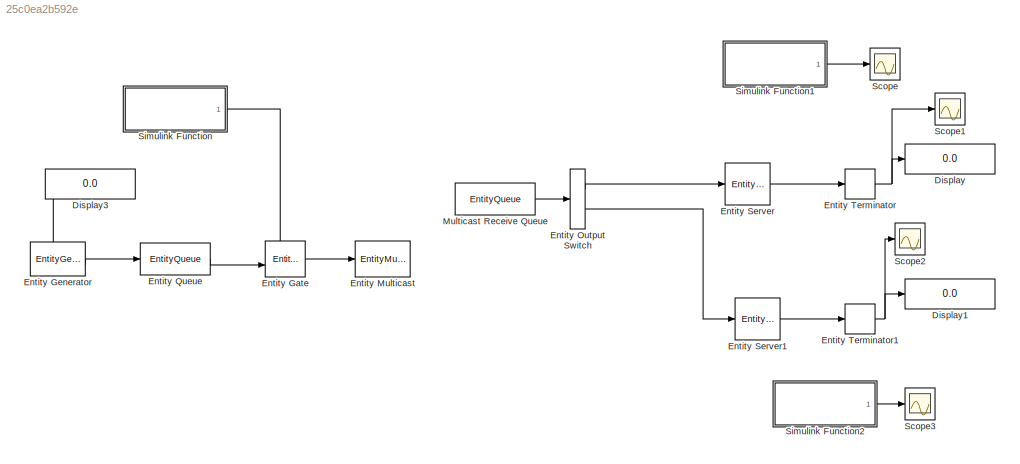
MODEL slx_25c0ea2b592e
KIND model
CONFIG AbsTol = auto
CONFIG FixedStep = auto
CONFIG MaxStep = auto
CONFIG MinStep = auto
CONFIG RelTol = 1e-3
CONFIG SampleTimeConstraint = Unconstrained
CONFIG Solver = VariableStepAuto
CONFIG SolverMode = Auto
CONFIG SolverName = VariableStepAuto
CONFIG StartTime = 0.0
CONFIG StopTime = 50
BLOCK [Display] Display
  Decimation = 1
  Ports = [1]
BLOCK [Display] Display1
  Decimation = 1
  Ports = [1]
BLOCK [Display] Display3
  Decimation = 1
  Ports = [1]
BLOCK [EntityGate] Entity Gate
  InputPortMap = u0,u1
  InputPortMessageModes = m,m
  OutputPortMap = o0
  OutputPortMessageModes = m
  Ports = [2, 1]
BLOCK [EntityGenerator] Entity Generator
  AttributeInitialValue = 1 + 1 * rand
  AttributeName = CheckinTime
  EntityPriority = 1
  EntityType = Structured
  EntityTypeName = Entity
  GenerateAction = persistent number;\nnumber = rand;\nif (number < 0.33)\n    entitySys.priority = 1;\nelse if (number < 0.66)\n        entitySys.priority = 2;\nelse entitySys.priority = 3;\nend
  IntergenerationTimeAction = dt = exprnd(0.1);
  NumberEntitiesDeparted = on
  OutputPortMap = o0,o3
  OutputPortMessageModes = n,m
  Ports = [0, 2]
  TimeSource = MATLAB action
BLOCK [EntityMulticast] Entity Multicast
  InputPortMessageModes = m
  MulticastTag = Tag
BLOCK [EntityOutputSwitch] Entity Output Switch
  InputPortMap = u1
  InputPortMessageModes = m
  OutputPortMap = o0,o1
  OutputPortMessageModes = m,m
  Ports = [1, 2]
  SwitchAttributeName = Attribute1
  SwitchingCriterion = Equiprobable
BLOCK [EntityQueue] Entity Queue
  EntryAction = persistent nEntered\nif(isempty(nEntered))\n    nEntered=0;\nend\nnEntered = nEntered+1;\nif(nEntered > 4)\n    OpenGate(nEntered);\nend\nentitySys.priority = round(1 + 2 * rand);
  InputPortMap = u0
  InputPortMessageModes = m
  OutputPortMap = o5
  OutputPortMessageModes = m
  Ports = [1, 1]
BLOCK [EntityServer] Entity Server
  Capacity = 1
  InputPortMap = u2
  InputPortMessageModes = m
  OutputPortMap = o9
  OutputPortMessageModes = m
  Ports = [1, 1]
  ServiceTimeAttributeName = CheckinTime
  ServiceTimeSource = Attribute
BLOCK [EntityServer] Entity Server1
  Capacity = 1
  InputPortMap = u2
  InputPortMessageModes = m
  OutputPortMap = o9
  OutputPortMessageModes = m
  Ports = [1, 1]
  ServiceTimeAttributeName = CheckinTime
  ServiceTimeSource = Attribute
BLOCK [EntityTerminator] Entity Terminator
  EntryAction = ShowPriority(entitySys.priority);
  InputPortMap = u0
  InputPortMessageModes = m
  NumberEntitiesArrived = on
  OutputPortMap = o0
  Ports = [1, 1]
BLOCK [EntityTerminator] Entity Terminator1
  EntryAction = ShowPriority(entitySys.priority);
  InputPortMap = u0
  InputPortMessageModes = m
  NumberEntitiesArrived = on
  OutputPortMap = o0
  Ports = [1, 1]
BLOCK [EntityQueue] Multicast Receive Queue
  EntityArrivalSource = Multicast
  MulticastTag = Tag
  OutputPortMap = o5
  OutputPortMessageModes = m
  Ports = [0, 1]
  PrioritySource = entitySys.priority
  QueueType = Priority
  SortingDirection = Descending
BLOCK [Scope] Scope
  Ports = [1]
  ScopeSpecificationString = Simulink.scopes.TimeScopeBlockCfg('CurrentConfiguration', extmgr.ConfigurationSet(extmgr.Configuration('Core','General UI',true),extmgr.Configuration('Core','Source UI',true),extmgr.Configuration('Sources','WiredSimulink',true),extmgr.Configuration('Visuals','Time Domain',true,'SerializedDisplays',{struct('MinYLimReal','-0.375','MaxYLimReal','3.375','YLabelReal','','MinYLimMag','0.00000','MaxYLimM...<+1370ch>
BLOCK [Scope] Scope1
  Ports = [1]
  ScopeSpecificationString = Simulink.scopes.TimeScopeBlockCfg('CurrentConfiguration', extmgr.ConfigurationSet(extmgr.Configuration('Core','General UI',true),extmgr.Configuration('Core','Source UI',true),extmgr.Configuration('Sources','WiredSimulink',true,'DataLoggingVariableName','ScopeData1'),extmgr.Configuration('Visuals','Time Domain',true,'SerializedDisplays',{struct('MinYLimReal','-0.375','MaxYLimReal','3.375','YLabelRe...<+1409ch>
BLOCK [Scope] Scope2
  Ports = [1]
  ScopeSpecificationString = Simulink.scopes.TimeScopeBlockCfg('CurrentConfiguration', extmgr.ConfigurationSet(extmgr.Configuration('Core','General UI',true),extmgr.Configuration('Core','Source UI',true),extmgr.Configuration('Sources','WiredSimulink',true,'DataLoggingVariableName','ScopeData2'),extmgr.Configuration('Visuals','Time Domain',true,'SerializedDisplays',{struct('MinYLimReal','-0.375','MaxYLimReal','3.375','YLabelRe...<+1409ch>
BLOCK [Scope] Scope3
  Ports = [1]
  ScopeSpecificationString = Simulink.scopes.TimeScopeBlockCfg('CurrentConfiguration', extmgr.ConfigurationSet(extmgr.Configuration('Core','General UI',true),extmgr.Configuration('Core','Source UI',true),extmgr.Configuration('Sources','WiredSimulink',true,'DataLoggingVariableName','ScopeData3'),extmgr.Configuration('Visuals','Time Domain',true,'SerializedDisplays',{struct('MinYLimReal','-0.375','MaxYLimReal','3.375','YLabelRe...<+1409ch>
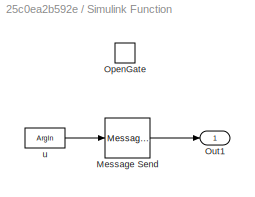
BLOCK [SubSystem] Simulink Function
  Ports = [0, 1, 0, 1]
  RequestExecContextInheritance = off
  TreatAsAtomicUnit = on
  Variant = off
BLOCK [MessageSend] Simulink Function/Message Send
  InputPortMap = u1
  OutputPortMessageModes = m
  Ports = [1, 1]
BLOCK [TriggerPort] Simulink Function/OpenGate
  FunctionName = OpenGate
  IsSimulinkFunction = on
  Ports = []
  StatesWhenEnabling = held
  TriggerType = function-call
  VariantControl = Variant
BLOCK [Outport] Simulink Function/Out1
  IconDisplay = Port number
BLOCK [ArgIn] Simulink Function/u
  ArgumentName = u
  DisableCoverage = on
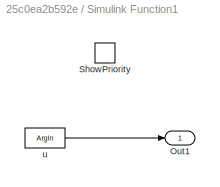
BLOCK [SubSystem] Simulink Function1
  Ports = [0, 1, 0, 1]
  RequestExecContextInheritance = off
  TreatAsAtomicUnit = on
  Variant = off
BLOCK [Outport] Simulink Function1/Out1
  IconDisplay = Port number
BLOCK [TriggerPort] Simulink Function1/ShowPriority
  FunctionName = ShowPriority
  IsSimulinkFunction = on
  Ports = []
  StatesWhenEnabling = held
  TriggerType = function-call
  VariantControl = Variant
BLOCK [ArgIn] Simulink Function1/u
  ArgumentName = u
  DisableCoverage = on
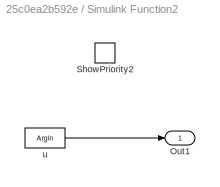
BLOCK [SubSystem] Simulink Function2
  Ports = [0, 1, 0, 1]
  RequestExecContextInheritance = off
  TreatAsAtomicUnit = on
  Variant = off
BLOCK [Outport] Simulink Function2/Out1
  IconDisplay = Port number
BLOCK [TriggerPort] Simulink Function2/ShowPriority2
  FunctionName = ShowPriority2
  IsSimulinkFunction = on
  Ports = []
  StatesWhenEnabling = held
  TriggerType = function-call
  VariantControl = Variant
BLOCK [ArgIn] Simulink Function2/u
  ArgumentName = u
  DisableCoverage = on
LINE Entity Gate:1 -> Entity Multicast:1
LINE Entity Generator:1 -> Display3:1
LINE Entity Generator:2 -> Entity Queue:1
LINE Entity Output Switch:1 -> Entity Server:1
LINE Entity Output Switch:2 -> Entity Server1:1
LINE Entity Queue:1 -> Entity Gate:2
LINE Entity Server1:1 -> Entity Terminator1:1
LINE Entity Server:1 -> Entity Terminator:1
NET Entity Terminator1:1 -> Display1:1, Scope2:1
NET Entity Terminator:1 -> Display:1, Scope1:1
LINE Multicast Receive Queue:1 -> Entity Output Switch:1
LINE Simulink Function/Message Send:1 -> Simulink Function/Out1:1
LINE Simulink Function/u:1 -> Simulink Function/Message Send:1
LINE Simulink Function1/u:1 -> Simulink Function1/Out1:1
LINE Simulink Function1:1 -> Scope:1
LINE Simulink Function2/u:1 -> Simulink Function2/Out1:1
LINE Simulink Function2:1 -> Scope3:1
LINE Simulink Function:1 -> Entity Gate:1
note: NET lines group one-source signal fan-out (src -> all destinations, sorted); 1:1 wires keep LINE
